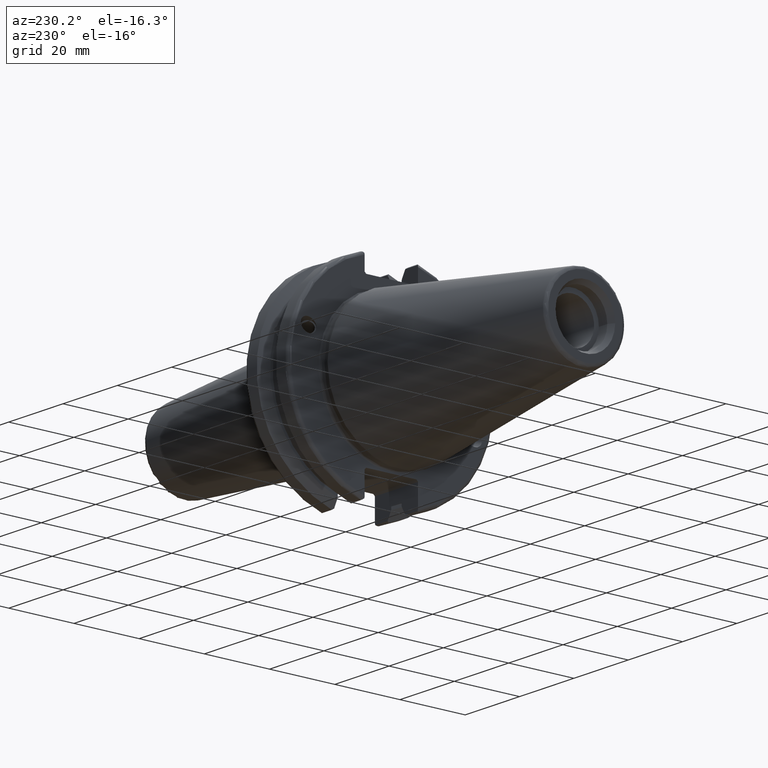
[diagram: clean part render]
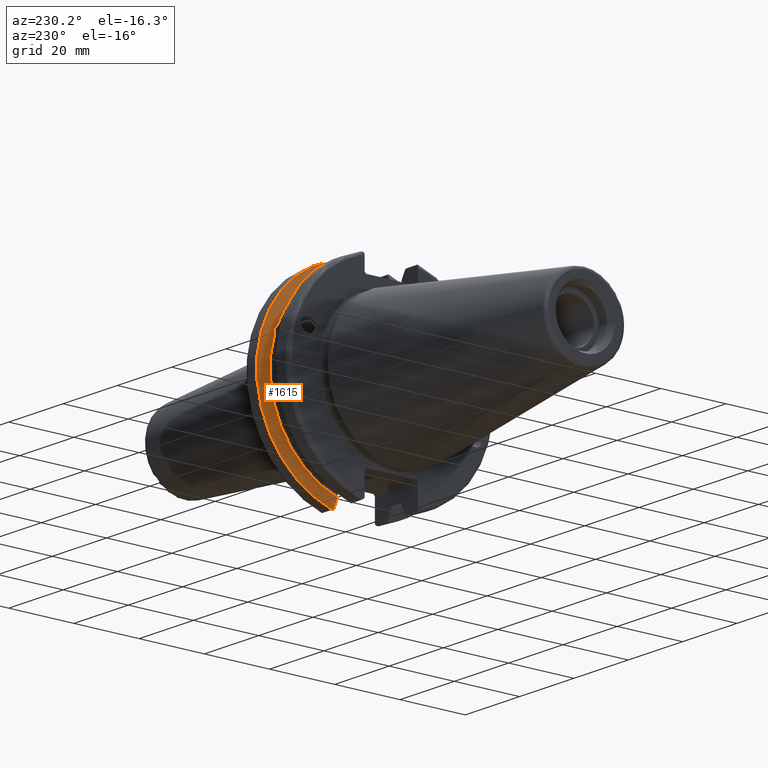
[diagram: same view with one face highlighted and labeled with its STEP entity id]
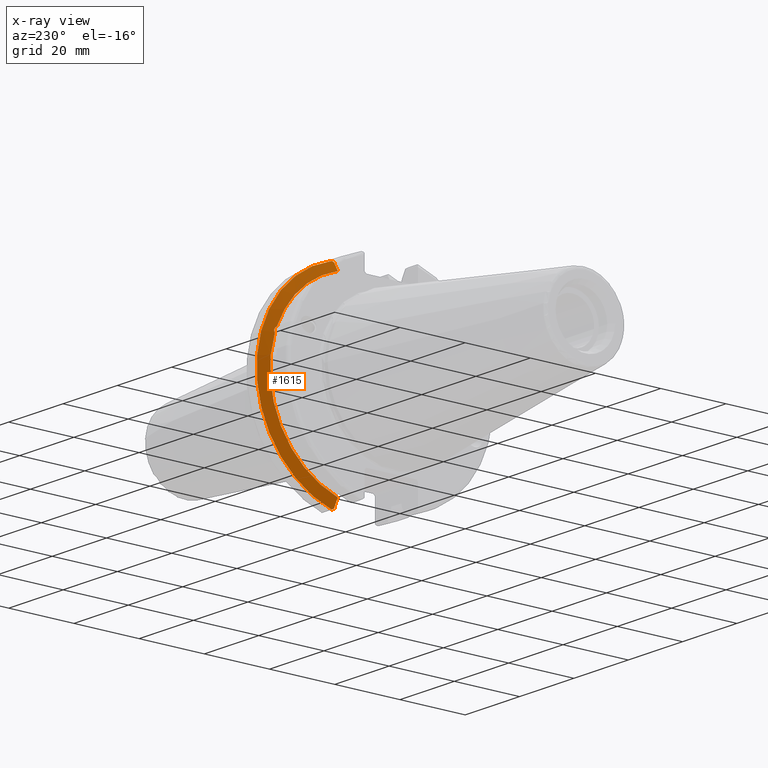
[diagram: x-ray of the same camera — body ghosted, the highlighted face saturated]
A machine part, auxiliary view. The second image highlights one B-rep face of the part: STEP entity #1615.
The next image is the same camera in x-ray: the body ghosted, the highlighted face saturated — about 0% of this face is hidden behind the body in this view.
In plain terms, the highlighted conical surface has half-angle 60 deg.
Its self-contained STEP definition (entity closure, byte-faithful):
#23=(
BOUNDED_CURVE()
B_SPLINE_CURVE(2,(#2865,#2866,#2867),.UNSPECIFIED.,.F.,.F.)
B_SPLINE_CURVE_WITH_KNOTS((3,3),(0.329353533631226,0.393258405001025),
 .UNSPECIFIED.)
CURVE()
GEOMETRIC_REPRESENTATION_ITEM()
RATIONAL_B_SPLINE_CURVE((1.00047644010577,1.00028444218285,1.))
REPRESENTATION_ITEM('')
);
#24=(
BOUNDED_CURVE()
B_SPLINE_CURVE(2,(#2879,#2880,#2881),.UNSPECIFIED.,.F.,.F.)
B_SPLINE_CURVE_WITH_KNOTS((3,3),(0.0550586467393769,0.331607789535852),
 .UNSPECIFIED.)
CURVE()
GEOMETRIC_REPRESENTATION_ITEM()
RATIONAL_B_SPLINE_CURVE((1.00031614444922,1.00095203903643,1.))
REPRESENTATION_ITEM('')
);
#29=(
BOUNDED_CURVE()
B_SPLINE_CURVE(2,(#3044,#3045,#3046),.UNSPECIFIED.,.F.,.F.)
B_SPLINE_CURVE_WITH_KNOTS((3,3),(0.,0.276549142795274),.UNSPECIFIED.)
CURVE()
GEOMETRIC_REPRESENTATION_ITEM()
RATIONAL_B_SPLINE_CURVE((1.,1.00095203903599,1.00031614444907))
REPRESENTATION_ITEM('')
);
#30=(
BOUNDED_CURVE()
B_SPLINE_CURVE(2,(#3061,#3062,#3063),.UNSPECIFIED.,.F.,.F.)
B_SPLINE_CURVE_WITH_KNOTS((3,3),(0.,0.0639048713675655),.UNSPECIFIED.)
CURVE()
GEOMETRIC_REPRESENTATION_ITEM()
RATIONAL_B_SPLINE_CURVE((1.,1.00028444218286,1.00047644010578))
REPRESENTATION_ITEM('')
);
#40=B_SPLINE_CURVE_WITH_KNOTS('',3,(#2663,#2664,#2665,#2666,#2667,#2668,
#2669,#2670),.UNSPECIFIED.,.F.,.F.,(4,2,2,4),(0.451995700189023,0.464547828547662,
0.504528771685167,0.544509714822673),.UNSPECIFIED.);
#44=B_SPLINE_CURVE_WITH_KNOTS('',3,(#2725,#2726,#2727,#2728,#2729,#2730,
#2731,#2732),.UNSPECIFIED.,.F.,.F.,(4,2,2,4),(0.544509714822673,0.584490657960178,
0.624471601097683,0.637023729456323),.UNSPECIFIED.);
#290=CONICAL_SURFACE('',#1823,30.3546886482472,1.0471975511966);
#455=FACE_OUTER_BOUND('',#564,.T.);
#564=EDGE_LOOP('',(#1476,#1477,#1478,#1479,#1480,#1481,#1482,#1483,#1484));
#619=CIRCLE('',#1750,28.9593772964944);
#642=CIRCLE('',#1809,31.75);
#649=CIRCLE('',#1824,28.9593772964944);
#730=VERTEX_POINT('',#2660);
#731=VERTEX_POINT('',#2662);
#738=VERTEX_POINT('',#2723);
#747=VERTEX_POINT('',#2765);
#774=VERTEX_POINT('',#2862);
#775=VERTEX_POINT('',#2864);
#800=VERTEX_POINT('',#3041);
#801=VERTEX_POINT('',#3043);
#804=VERTEX_POINT('',#3059);
#916=EDGE_CURVE('',#731,#730,#40,.T.);
#924=EDGE_CURVE('',#730,#738,#44,.T.);
#936=EDGE_CURVE('',#747,#731,#619,.T.);
#972=EDGE_CURVE('',#774,#775,#23,.T.);
#977=EDGE_CURVE('',#774,#747,#24,.T.);
#1022=EDGE_CURVE('',#801,#800,#29,.T.);
#1030=EDGE_CURVE('',#804,#800,#30,.T.);
#1031=EDGE_CURVE('',#775,#804,#642,.T.);
#1041=EDGE_CURVE('',#738,#801,#649,.T.);
#1476=ORIENTED_EDGE('',*,*,#916,.T.);
#1477=ORIENTED_EDGE('',*,*,#924,.T.);
#1478=ORIENTED_EDGE('',*,*,#1041,.T.);
#1479=ORIENTED_EDGE('',*,*,#1022,.T.);
#1480=ORIENTED_EDGE('',*,*,#1030,.F.);
#1481=ORIENTED_EDGE('',*,*,#1031,.F.);
#1482=ORIENTED_EDGE('',*,*,#972,.F.);
#1483=ORIENTED_EDGE('',*,*,#977,.T.);
#1484=ORIENTED_EDGE('',*,*,#936,.T.);
#1615=ADVANCED_FACE('',(#455),#290,.T.);
#1750=AXIS2_PLACEMENT_3D('',#2766,#2085,#2086);
#1809=AXIS2_PLACEMENT_3D('',#3065,#2250,#2251);
#1823=AXIS2_PLACEMENT_3D('',#3085,#2281,#2282);
#1824=AXIS2_PLACEMENT_3D('',#3086,#2283,#2284);
#2085=DIRECTION('center_axis',(1.,0.,0.));
#2086=DIRECTION('ref_axis',(0.,0.,-1.));
#2250=DIRECTION('center_axis',(1.,0.,0.));
#2251=DIRECTION('ref_axis',(0.,0.,-1.));
#2281=DIRECTION('center_axis',(1.,0.,0.));
#2282=DIRECTION('ref_axis',(0.,1.,0.));
#2283=DIRECTION('center_axis',(1.,0.,0.));
#2284=DIRECTION('ref_axis',(0.,0.,-1.));
#2660=CARTESIAN_POINT('',(13.2341,27.51401829017,10.0142836826778));
#2662=CARTESIAN_POINT('',(13.0491,27.4956274489925,9.09043478536244));
#2663=CARTESIAN_POINT('Ctrl Pts',(13.0491,27.4956274489925,9.09043478536245));
#2664=CARTESIAN_POINT('Ctrl Pts',(13.0632204071996,27.5087667900418,9.12860597076217));
#2665=CARTESIAN_POINT('Ctrl Pts',(13.0766929817857,27.5206055003513,9.16696618806877));
#2666=CARTESIAN_POINT('Ctrl Pts',(13.130081441159,27.5642934663232,9.32791534028656));
#2667=CARTESIAN_POINT('Ctrl Pts',(13.1682197084175,27.5867382255984,9.46717946402648));
#2668=CARTESIAN_POINT('Ctrl Pts',(13.2204106446058,27.5847569104122,9.74771639360672));
#2669=CARTESIAN_POINT('Ctrl Pts',(13.2341,27.559599249844,9.8890510252165));
#2670=CARTESIAN_POINT('Ctrl Pts',(13.2341,27.51401829017,10.0142836826778));
#2723=CARTESIAN_POINT('',(13.0491,26.9060914640648,10.7101715919071));
#2725=CARTESIAN_POINT('Ctrl Pts',(13.2341,27.51401829017,10.0142836826778));
#2726=CARTESIAN_POINT('Ctrl Pts',(13.2341,27.4684373304961,10.139516340139));
#2727=CARTESIAN_POINT('Ctrl Pts',(13.2204106446058,27.3968610665578,10.2639559818059));
#2728=CARTESIAN_POINT('Ctrl Pts',(13.1682197084175,27.2180531796526,10.4801333026531));
#2729=CARTESIAN_POINT('Ctrl Pts',(13.130081441159,27.1113422433189,10.5723885976054));
#2730=CARTESIAN_POINT('Ctrl Pts',(13.0766929817857,26.9744191989197,10.6676007180674));
#2731=CARTESIAN_POINT('Ctrl Pts',(13.0632204071996,26.9406927482839,10.6893765730703));
#2732=CARTESIAN_POINT('Ctrl Pts',(13.0491,26.9060914640648,10.7101715919071));
#2765=CARTESIAN_POINT('',(13.0491,8.19,-27.7771386827498));
#2766=CARTESIAN_POINT('Origin',(13.0491,0.,0.));
#2862=CARTESIAN_POINT('',(14.3815146964874,8.19,-30.1755016258903));
#2864=CARTESIAN_POINT('',(14.6602667690756,8.67204822802685,-30.5427254764662));
#2865=CARTESIAN_POINT('Ctrl Pts',(14.3815146964874,8.19,-30.1755016258903));
#2866=CARTESIAN_POINT('Ctrl Pts',(14.5192085187884,8.42917748263464,-30.3577067892692));
#2867=CARTESIAN_POINT('Ctrl Pts',(14.6602667690756,8.67204822802686,-30.5427254764662));
#2879=CARTESIAN_POINT('Ctrl Pts',(14.3815146964874,8.18999999999999,-30.1755016258903));
#2880=CARTESIAN_POINT('Ctrl Pts',(13.687736438474,8.19,-28.9303689539668));
#2881=CARTESIAN_POINT('Ctrl Pts',(13.0491,8.19,-27.7771386827498));
#3041=CARTESIAN_POINT('',(14.3815146964874,8.19,30.1755016258903));
#3043=CARTESIAN_POINT('',(13.0491,8.19,27.7771386827498));
#3044=CARTESIAN_POINT('Ctrl Pts',(13.0491,8.19,27.7771386827498));
#3045=CARTESIAN_POINT('Ctrl Pts',(13.687736438489,8.19,28.9303689539938));
#3046=CARTESIAN_POINT('Ctrl Pts',(14.3815146964874,8.19,30.1755016258903));
#3059=CARTESIAN_POINT('',(14.6602667690756,8.67204822802685,30.5427254764662));
#3061=CARTESIAN_POINT('Ctrl Pts',(14.6602667690756,8.67204822802687,30.5427254764662));
#3062=CARTESIAN_POINT('Ctrl Pts',(14.5192085187837,8.42917748262644,30.357706789263));
#3063=CARTESIAN_POINT('Ctrl Pts',(14.3815146964874,8.19,30.1755016258903));
#3065=CARTESIAN_POINT('Origin',(14.6602667690756,0.,0.));
#3085=CARTESIAN_POINT('Origin',(13.8546833845378,0.,0.));
#3086=CARTESIAN_POINT('Origin',(13.0491,0.,0.));